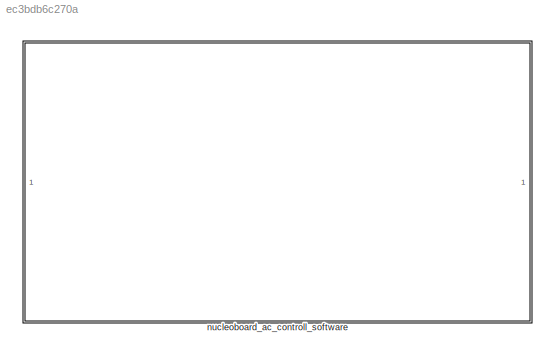
MODEL slx_ec3bdb6c270a
KIND library
CONFIG AbsTol = auto
CONFIG EnableMultiTasking = off
CONFIG FixedStep = auto
CONFIG MaxStep = auto
CONFIG MinStep = auto
CONFIG RelTol = 1e-3
CONFIG SampleTimeConstraint = Unconstrained
CONFIG SolverName = VariableStepAuto
CONFIG StartTime = 0.0
CONFIG StopTime = 10.0
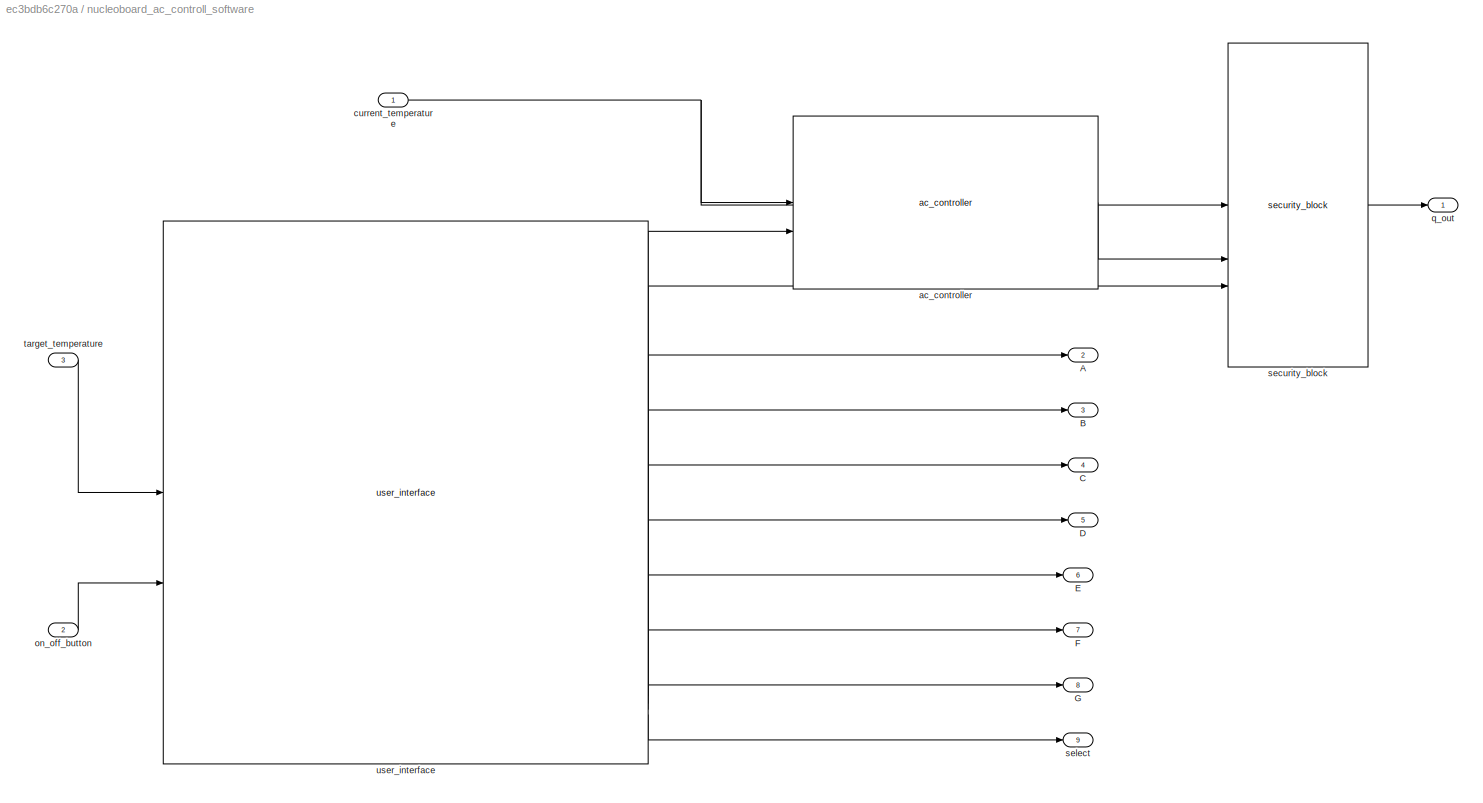
BLOCK [SubSystem] nucleoboard_ac_controll_software
BLOCK [Outport] nucleoboard_ac_controll_software/A
  Port = 2
BLOCK [Outport] nucleoboard_ac_controll_software/B
  Port = 3
BLOCK [Outport] nucleoboard_ac_controll_software/C
  Port = 4
BLOCK [Outport] nucleoboard_ac_controll_software/D
  Port = 5
BLOCK [Outport] nucleoboard_ac_controll_software/E
  Port = 6
BLOCK [Outport] nucleoboard_ac_controll_software/F
  Port = 7
BLOCK [Outport] nucleoboard_ac_controll_software/G
  Port = 8
BLOCK [Reference] nucleoboard_ac_controll_software/ac_controller  REF=ac_controller/ac_controller  (lib defined in slx_5e19b1382a52)
  SourceBlock = ac_controller/ac_controller
  SourceType = SubSystem
BLOCK [Inport] nucleoboard_ac_controll_software/current_temperature
BLOCK [Inport] nucleoboard_ac_controll_software/on_off_button
  Port = 2
BLOCK [Outport] nucleoboard_ac_controll_software/q_out
BLOCK [Reference] nucleoboard_ac_controll_software/security_block  REF=security_block/security_block  (lib defined in slx_abfe62e04899)
  SourceBlock = security_block/security_block
  SourceType = SubSystem
BLOCK [Outport] nucleoboard_ac_controll_software/select
  Port = 9
BLOCK [Inport] nucleoboard_ac_controll_software/target_temperature
  Port = 3
BLOCK [Reference] nucleoboard_ac_controll_software/user_interface  REF=user_interface/user_interface  (lib defined in slx_6d1f12c12c2e)
  SourceBlock = user_interface/user_interface
  SourceType = SubSystem
LINE nucleoboard_ac_controll_software/ac_controller:1 -> nucleoboard_ac_controll_software/security_block:2
NET nucleoboard_ac_controll_software/current_temperature:1 -> nucleoboard_ac_controll_software/ac_controller:1, nucleoboard_ac_controll_software/security_block:1
LINE nucleoboard_ac_controll_software/on_off_button:1 -> nucleoboard_ac_controll_software/user_interface:2
LINE nucleoboard_ac_controll_software/security_block:1 -> nucleoboard_ac_controll_software/q_out:1
LINE nucleoboard_ac_controll_software/target_temperature:1 -> nucleoboard_ac_controll_software/user_interface:1
LINE nucleoboard_ac_controll_software/user_interface:1 -> nucleoboard_ac_controll_software/ac_controller:2
LINE nucleoboard_ac_controll_software/user_interface:10 -> nucleoboard_ac_controll_software/select:1
LINE nucleoboard_ac_controll_software/user_interface:2 -> nucleoboard_ac_controll_software/security_block:3
LINE nucleoboard_ac_controll_software/user_interface:3 -> nucleoboard_ac_controll_software/A:1
LINE nucleoboard_ac_controll_software/user_interface:4 -> nucleoboard_ac_controll_software/B:1
LINE nucleoboard_ac_controll_software/user_interface:5 -> nucleoboard_ac_controll_software/C:1
LINE nucleoboard_ac_controll_software/user_interface:6 -> nucleoboard_ac_controll_software/D:1
LINE nucleoboard_ac_controll_software/user_interface:7 -> nucleoboard_ac_controll_software/E:1
LINE nucleoboard_ac_controll_software/user_interface:8 -> nucleoboard_ac_controll_software/F:1
LINE nucleoboard_ac_controll_software/user_interface:9 -> nucleoboard_ac_controll_software/G:1
note: NET lines group one-source signal fan-out (src -> all destinations, sorted); 1:1 wires keep LINE
